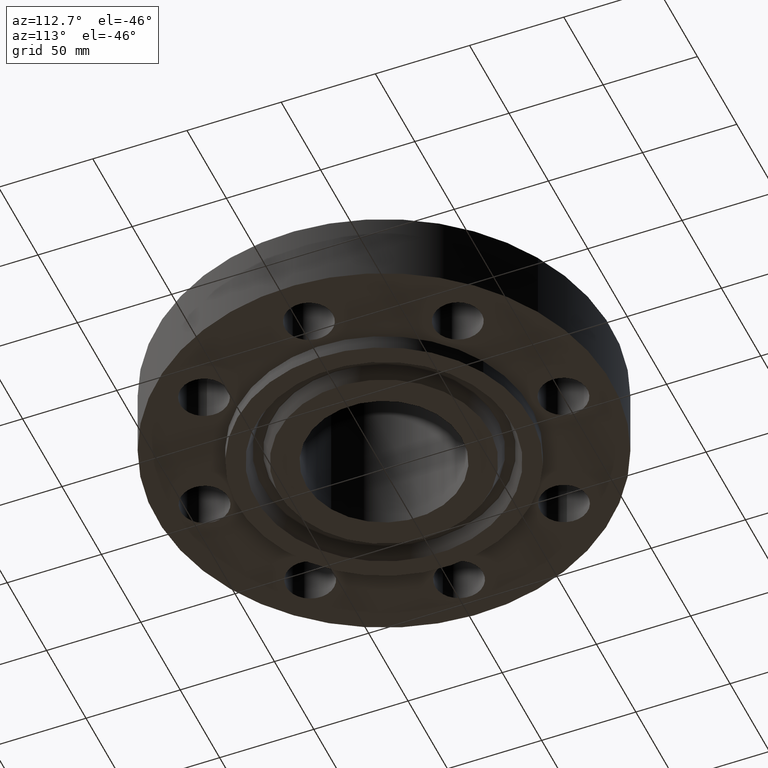
[diagram: clean part render]
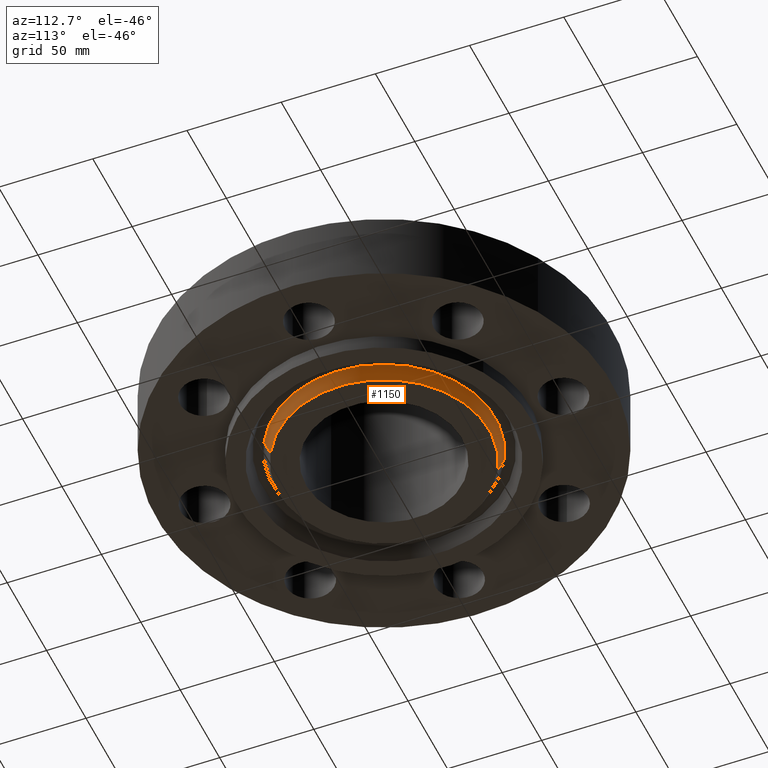
[diagram: same view with one face highlighted and labeled with its STEP entity id]
A machine part, auxiliary view. The second image highlights one B-rep face of the part: STEP entity #1150.
In plain terms, the highlighted conical surface has half-angle 23 deg.
Its self-contained STEP definition (entity closure, byte-faithful):
#956=AXIS2_PLACEMENT_3D('Circle Axis2P3D',#954,#955,$) ;
#1100=AXIS2_PLACEMENT_3D('Circle Axis2P3D',#1098,#1099,$) ;
#1132=AXIS2_PLACEMENT_3D('Cone Axis2P3D',#1129,#1130,#1131) ;
#954=CARTESIAN_POINT('Axis2P3D Location',(5.59482469102E-016,2.79741234551E-016,-0.312500000001)) ;
#958=CARTESIAN_POINT('Vertex',(-1.0562224041,1.93340214211,-0.312500000001)) ;
#960=CARTESIAN_POINT('Vertex',(1.0562224041,-1.93340214211,-0.312500000001)) ;
#1095=CARTESIAN_POINT('Vertex',(1.11593657906,-2.04270820617,-0.0190701156784)) ;
#1098=CARTESIAN_POINT('Axis2P3D Location',(0.,0.,-0.0190701156784)) ;
#1102=CARTESIAN_POINT('Vertex',(-1.11593657906,2.04270820617,-0.0190701156784)) ;
#1129=CARTESIAN_POINT('Axis2P3D Location',(0.,0.,-0.372500000001)) ;
#1134=CARTESIAN_POINT('Line Origine',(-1.08607949158,1.98805517414,-0.16578505784)) ;
#1139=CARTESIAN_POINT('Line Origine',(1.08607949158,-1.98805517414,-0.16578505784)) ;
#955=DIRECTION('Axis2P3D Direction',(0.,0.,-0.0393700787402)) ;
#1099=DIRECTION('Axis2P3D Direction',(0.,0.,0.0393700787402)) ;
#1130=DIRECTION('Axis2P3D Direction',(0.,0.,0.0393700787402)) ;
#1131=DIRECTION('Axis2P3D XDirection',(-0.0188750212049,0.0345504945626,0.)) ;
#1135=DIRECTION('Vector Direction',(-0.00737505833565,0.0134999537303,0.0362403485611)) ;
#1140=DIRECTION('Vector Direction',(0.00737505833565,-0.0134999537303,0.0362403485611)) ;
#1136=VECTOR('Line Direction',#1135,0.0393700787402) ;
#1141=VECTOR('Line Direction',#1140,0.0393700787402) ;
#1145=ORIENTED_EDGE('',*,*,#1138,.F.) ;
#1146=ORIENTED_EDGE('',*,*,#1104,.F.) ;
#1147=ORIENTED_EDGE('',*,*,#1143,.T.) ;
#1148=ORIENTED_EDGE('',*,*,#962,.F.) ;
#1150=ADVANCED_FACE('PartBody',(#1149),#1133,.T.) ;
#957=CIRCLE('generated circle',#956,2.20310000001) ;
#1101=CIRCLE('generated circle',#1100,2.32765359623) ;
#1133=CONICAL_SURFACE('Cone',#1132,2.17763151104,0.401425727959) ;
#962=EDGE_CURVE('',#959,#961,#957,.T.) ;
#1104=EDGE_CURVE('',#1096,#1103,#1101,.T.) ;
#1138=EDGE_CURVE('',#1103,#959,#1137,.F.) ;
#1143=EDGE_CURVE('',#1096,#961,#1142,.F.) ;
#1144=EDGE_LOOP('',(#1145,#1146,#1147,#1148)) ;
#1149=FACE_OUTER_BOUND('',#1144,.T.) ;
#1137=LINE('Line',#1134,#1136) ;
#1142=LINE('Line',#1139,#1141) ;
#959=VERTEX_POINT('',#958) ;
#961=VERTEX_POINT('',#960) ;
#1096=VERTEX_POINT('',#1095) ;
#1103=VERTEX_POINT('',#1102) ;